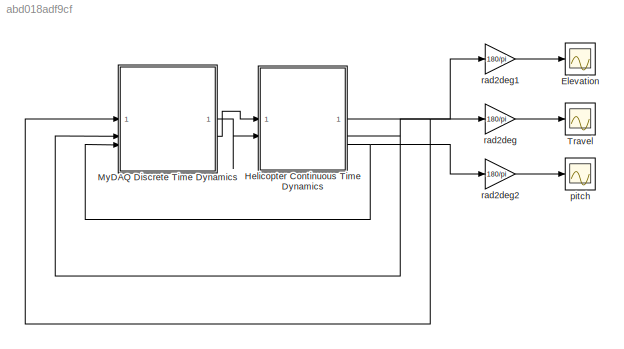
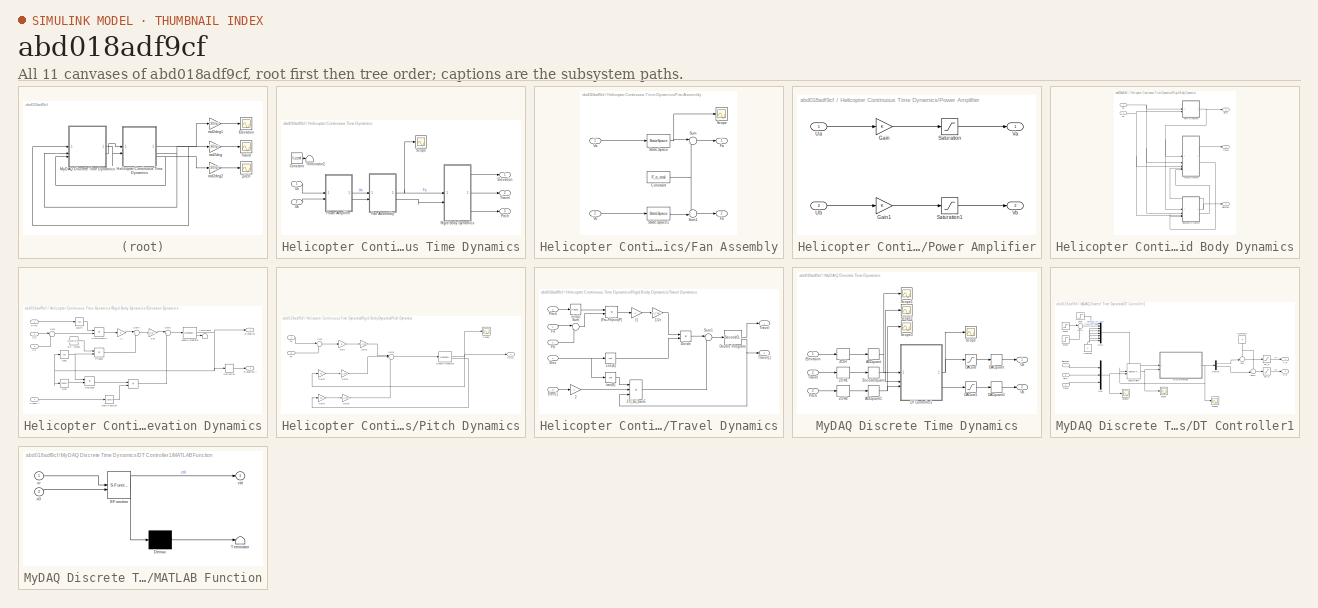
[diagram: thumbnail index - all 11 canvases of the model, root first then tree order]
MODEL slx_abd018adf9cf
KIND model
CONFIG AbsTol = auto
CONFIG EnableMultiTasking = on
CONFIG FixedStep = Ts
CONFIG MaxStep = auto
CONFIG MinStep = auto
CONFIG RelTol = 1e-5
CONFIG SampleTimeConstraint = Unconstrained
CONFIG SolverName = FixedStepAuto
CONFIG StartTime = 0.00
CONFIG StopTime = 10
BLOCK [Scope] Elevation
  ActiveDisplayYMaximum = 30
  ActiveDisplayYMinimum = -50
  DataLogging = on
  DataLoggingDecimateData = on
  DataLoggingDecimation = 1
  DataLoggingSaveFormat = Structure With Time
  DataLoggingVariableName = elev
  Floating = off
  GraphicalSettings = {"GraphicalSettings":{"LegacySettings":true,"Style":{"AxesScalingProperties":{"ScaleAxesLimitsAtStop":false},"Style":{"AxesColor":"[0 0 0]","ChannelNames":[""],"ColorOrder":"[1 0.909803921568627 0.392156862745098;0.149019607843137 0.549019607843137 0.866666666666667;0.96078431372549 0.466666666666667 0.16078431372549;0.286274509803922 0.858823529411765 0.250980392156863;0.752941176470588 0.3607843...<+488ch>  <repeated x3 — deduplicated; at blocks: Elevation, Travel, pitch>
  MultipleDisplayCache = [{"MaxYLimMag":10,"MaxYLimReal":30,"MinYLimMag":0,"MinYLimReal":-50,"PlotAsMagnitudePhase":false,"ShowGrid":true,"ShowLegend":false,"Title":"%<SignalLabel>","YLabel":""}]
  NumInputPorts = 1
  ScopeFrameLocation = window
  TimeSpan = 60
  WasSavedAsWebScope = on
  WindowPosition = [1.000000,49.000000,1920.000000,955.000000,]
BLOCK [SubSystem] Helicopter Continuous Time Dynamics
BLOCK [Constant] Helicopter Continuous Time Dynamics/Constant
  Value = U_e_real
BLOCK [Outport] Helicopter Continuous Time Dynamics/Elevation
  NameLocation = top
BLOCK [SubSystem] Helicopter Continuous Time Dynamics/Fan Assembly
BLOCK [Constant] Helicopter Continuous Time Dynamics/Fan Assembly/Constant
  Value = F_e_real
BLOCK [Outport] Helicopter Continuous Time Dynamics/Fan Assembly/Fa
BLOCK [Outport] Helicopter Continuous Time Dynamics/Fan Assembly/Fb
  Port = 2
BLOCK [Scope] Helicopter Continuous Time Dynamics/Fan Assembly/Scope
  ActiveDisplayYMaximum = 1
  ActiveDisplayYMinimum = -1
  Floating = off
  GraphicalSettings = {"Style":{"BackgroundColor":[0.12941176470588237,0.12941176470588237,0.12941176470588237],"AxesColor":[0.07058823529411765,0.07058823529411765,0.07058823529411765],"LabelsColor":[0.8509803921568627,0.8509803921568627,0.8509803921568627],"PreserveColors":false,"Visible":[true],"LineStyle":["-"],"LineWidth":[1.5],"BarWidth":[0.9],"LineColor":["auto"],"LineFaceAlpha":[1],"LineEdgeAlpha":[1],"Marker":...<+1904ch>
  MultipleDisplayCache = [{"MaxYLimMag":1,"MaxYLimReal":1,"MinYLimMag":0,"MinYLimReal":-1,"PlotAsMagnitudePhase":false,"ShowGrid":true,"ShowLegend":false,"Title":"%<SignalLabel>","YLabel":""}]
  NumInputPorts = 1
  ScopeFrameLocation = window
  WasSavedAsWebScope = on
  WindowPosition = [404.000000,247.000000,1029.000000,659.000000,]
BLOCK [StateSpace] Helicopter Continuous Time Dynamics/Fan Assembly/State-Space
  A = sys_fan.A
  B = sys_fan.B
  C = sys_fan.C
  D = sys_fan.D
  InitialCondition = 0
BLOCK [StateSpace] Helicopter Continuous Time Dynamics/Fan Assembly/State-Space1
  A = sys_fan.A
  B = sys_fan.B
  C = sys_fan.C
  D = sys_fan.D
  InitialCondition = 0
BLOCK [Sum] Helicopter Continuous Time Dynamics/Fan Assembly/Sum
  Inputs = |++
BLOCK [Sum] Helicopter Continuous Time Dynamics/Fan Assembly/Sum1
  Inputs = ++|
BLOCK [Inport] Helicopter Continuous Time Dynamics/Fan Assembly/Va
BLOCK [Inport] Helicopter Continuous Time Dynamics/Fan Assembly/Vb
  Port = 2
BLOCK [Outport] Helicopter Continuous Time Dynamics/Pitch
  Port = 3
BLOCK [SubSystem] Helicopter Continuous Time Dynamics/Power Amplifier
BLOCK [Gain] Helicopter Continuous Time Dynamics/Power Amplifier/Gain
BLOCK [Gain] Helicopter Continuous Time Dynamics/Power Amplifier/Gain1
BLOCK [Saturate] Helicopter Continuous Time Dynamics/Power Amplifier/Saturation
  LowerLimit = -amp_sat_u
  UpperLimit = amp_sat_u
BLOCK [Saturate] Helicopter Continuous Time Dynamics/Power Amplifier/Saturation1
  LowerLimit = -amp_sat_u
  UpperLimit = amp_sat_u
BLOCK [Inport] Helicopter Continuous Time Dynamics/Power Amplifier/Ua
BLOCK [Inport] Helicopter Continuous Time Dynamics/Power Amplifier/Ub
  Port = 2
BLOCK [Outport] Helicopter Continuous Time Dynamics/Power Amplifier/Va
BLOCK [Outport] Helicopter Continuous Time Dynamics/Power Amplifier/Vb
  Port = 2
BLOCK [SubSystem] Helicopter Continuous Time Dynamics/Rigid Body Dynamics
BLOCK [Outport] Helicopter Continuous Time Dynamics/Rigid Body Dynamics/Elevation
  NameLocation = top
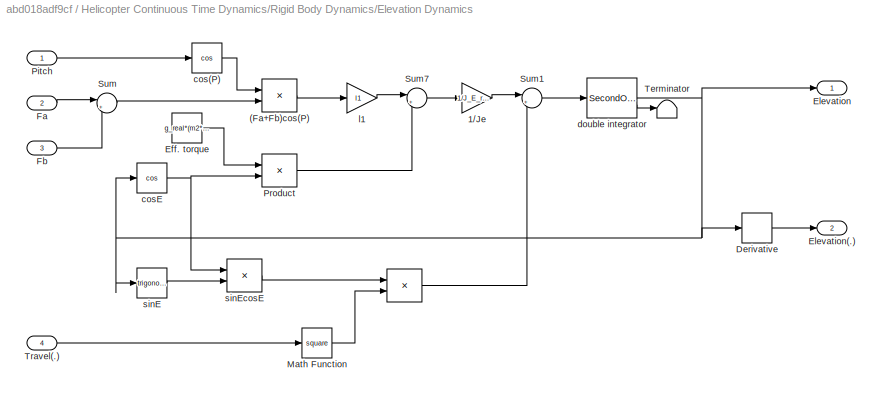
BLOCK [SubSystem] Helicopter Continuous Time Dynamics/Rigid Body Dynamics/Elevation Dynamics
BLOCK [Product] Helicopter Continuous Time Dynamics/Rigid Body Dynamics/Elevation Dynamics/ 
  InputSameDT = on
  OutDataTypeStr = Inherit: Same as first input
  RndMeth = Zero
  SaturateOnIntegerOverflow = on
BLOCK [Product] Helicopter Continuous Time Dynamics/Rigid Body Dynamics/Elevation Dynamics/(Fa+Fb)cos(P)
  InputSameDT = on
  OutDataTypeStr = Inherit: Same as first input
  RndMeth = Zero
  SaturateOnIntegerOverflow = on
BLOCK [Gain] Helicopter Continuous Time Dynamics/Rigid Body Dynamics/Elevation Dynamics/1//Je
  Gain = 1/J_E_real
  OutDataTypeStr = Inherit: Same as input
  ParamDataTypeStr = Inherit: Same as input
  SaturateOnIntegerOverflow = on
BLOCK [Derivative] Helicopter Continuous Time Dynamics/Rigid Body Dynamics/Elevation Dynamics/Derivative
BLOCK [Constant] Helicopter Continuous Time Dynamics/Rigid Body Dynamics/Elevation Dynamics/Eff. torque
  Value = g_real*(m2*l3-2*m1*l1)
BLOCK [Outport] Helicopter Continuous Time Dynamics/Rigid Body Dynamics/Elevation Dynamics/Elevation
BLOCK [Outport] Helicopter Continuous Time Dynamics/Rigid Body Dynamics/Elevation Dynamics/Elevation(.)
  Port = 2
BLOCK [Inport] Helicopter Continuous Time Dynamics/Rigid Body Dynamics/Elevation Dynamics/Fa
  Port = 2
BLOCK [Inport] Helicopter Continuous Time Dynamics/Rigid Body Dynamics/Elevation Dynamics/Fb
  Port = 3
BLOCK [Math] Helicopter Continuous Time Dynamics/Rigid Body Dynamics/Elevation Dynamics/Math Function
  Operator = square
  SignedPower = on
BLOCK [Inport] Helicopter Continuous Time Dynamics/Rigid Body Dynamics/Elevation Dynamics/Pitch
BLOCK [Product] Helicopter Continuous Time Dynamics/Rigid Body Dynamics/Elevation Dynamics/Product
  InputSameDT = on
  OutDataTypeStr = Inherit: Same as first input
  RndMeth = Zero
  SaturateOnIntegerOverflow = on
BLOCK [Sum] Helicopter Continuous Time Dynamics/Rigid Body Dynamics/Elevation Dynamics/Sum
  InputSameDT = on
  Inputs = |++
  OutDataTypeStr = Inherit: Same as first input
  SaturateOnIntegerOverflow = on
BLOCK [Sum] Helicopter Continuous Time Dynamics/Rigid Body Dynamics/Elevation Dynamics/Sum1
  InputSameDT = on
  Inputs = |+-
  OutDataTypeStr = Inherit: Same as first input
  SaturateOnIntegerOverflow = on
BLOCK [Sum] Helicopter Continuous Time Dynamics/Rigid Body Dynamics/Elevation Dynamics/Sum7
  InputSameDT = on
  Inputs = |++
  OutDataTypeStr = Inherit: Same as first input
  SaturateOnIntegerOverflow = on
BLOCK [Terminator] Helicopter Continuous Time Dynamics/Rigid Body Dynamics/Elevation Dynamics/Terminator
BLOCK [Inport] Helicopter Continuous Time Dynamics/Rigid Body Dynamics/Elevation Dynamics/Travel(.)
  Port = 4
BLOCK [Trigonometry] Helicopter Continuous Time Dynamics/Rigid Body Dynamics/Elevation Dynamics/cos(P)
  Operator = cos
BLOCK [Trigonometry] Helicopter Continuous Time Dynamics/Rigid Body Dynamics/Elevation Dynamics/cosE
  Operator = cos
BLOCK [SecondOrderIntegrator] Helicopter Continuous Time Dynamics/Rigid Body Dynamics/Elevation Dynamics/double integrator
  ICX = x0(1)
  LimitDXDT = on
  LimitX = on
  LowerLimitDXDT = -2*pi
  LowerLimitX = e_lim_l
  UpperLimitDXDT = 2*pi
  UpperLimitX = e_lim_u
BLOCK [Gain] Helicopter Continuous Time Dynamics/Rigid Body Dynamics/Elevation Dynamics/l1
  Gain = l1
  OutDataTypeStr = Inherit: Same as input
  ParamDataTypeStr = Inherit: Same as input
  SaturateOnIntegerOverflow = on
BLOCK [Trigonometry] Helicopter Continuous Time Dynamics/Rigid Body Dynamics/Elevation Dynamics/sinE
BLOCK [Product] Helicopter Continuous Time Dynamics/Rigid Body Dynamics/Elevation Dynamics/sinEcosE
  InputSameDT = on
  OutDataTypeStr = Inherit: Same as first input
  RndMeth = Zero
  SaturateOnIntegerOverflow = on
BLOCK [Inport] Helicopter Continuous Time Dynamics/Rigid Body Dynamics/Fa
BLOCK [Inport] Helicopter Continuous Time Dynamics/Rigid Body Dynamics/Fb
  Port = 2
BLOCK [Outport] Helicopter Continuous Time Dynamics/Rigid Body Dynamics/Pitch
  Port = 3
BLOCK [SubSystem] Helicopter Continuous Time Dynamics/Rigid Body Dynamics/Pitch Dynamics
BLOCK [SecondOrderIntegrator] Helicopter Continuous Time Dynamics/Rigid Body Dynamics/Pitch Dynamics/Double Integrator
  ICX = x0(2)
  LimitX = on
  LowerLimitX = p_lim_l
  UpperLimitX = p_lim_u
BLOCK [Inport] Helicopter Continuous Time Dynamics/Rigid Body Dynamics/Pitch Dynamics/Fa
BLOCK [Inport] Helicopter Continuous Time Dynamics/Rigid Body Dynamics/Pitch Dynamics/Fb
  Port = 2
BLOCK [Gain] Helicopter Continuous Time Dynamics/Rigid Body Dynamics/Pitch Dynamics/Gain
  Gain = l2
BLOCK [Gain] Helicopter Continuous Time Dynamics/Rigid Body Dynamics/Pitch Dynamics/Gain1
  Gain = 1/J_Psi_real
BLOCK [Gain] Helicopter Continuous Time Dynamics/Rigid Body Dynamics/Pitch Dynamics/Gain2
  Gain = ks
BLOCK [Gain] Helicopter Continuous Time Dynamics/Rigid Body Dynamics/Pitch Dynamics/Gain3
  Gain = 1/J_Psi_real
BLOCK [Gain] Helicopter Continuous Time Dynamics/Rigid Body Dynamics/Pitch Dynamics/Gain4
  Gain = kd
BLOCK [Gain] Helicopter Continuous Time Dynamics/Rigid Body Dynamics/Pitch Dynamics/Gain5
  Gain = 1/J_Psi_real
BLOCK [Outport] Helicopter Continuous Time Dynamics/Rigid Body Dynamics/Pitch Dynamics/Pitch
BLOCK [Scope] Helicopter Continuous Time Dynamics/Rigid Body Dynamics/Pitch Dynamics/Scope
  ActiveDisplayYMaximum = 1
  ActiveDisplayYMinimum = -1
  DataLoggingVariableName = ScopeData2
  Floating = off
  GraphicalSettings = {"Style":{"BackgroundColor":[0.12941176470588237,0.12941176470588237,0.12941176470588237],"AxesColor":[0.07058823529411765,0.07058823529411765,0.07058823529411765],"LabelsColor":[0.8509803921568627,0.8509803921568627,0.8509803921568627],"PreserveColors":false,"Visible":[true],"LineStyle":["-"],"LineWidth":[1.5],"BarWidth":[0.9],"LineColor":["auto"],"LineFaceAlpha":[1],"LineEdgeAlpha":[1],"Marker":...<+1922ch>
  MultipleDisplayCache = [{"MaxYLimMag":1,"MaxYLimReal":1,"MinYLimMag":0,"MinYLimReal":-1,"PlotAsMagnitudePhase":false,"ShowGrid":true,"ShowLegend":false,"Title":"%<SignalLabel>","YLabel":""}]
  NumInputPorts = 1
  ScopeFrameLocation = window
  WasSavedAsWebScope = on
  WindowPosition = [680.000000,330.000000,560.000000,420.000000,]
BLOCK [Sum] Helicopter Continuous Time Dynamics/Rigid Body Dynamics/Pitch Dynamics/Sum
  Inputs = +-
BLOCK [Sum] Helicopter Continuous Time Dynamics/Rigid Body Dynamics/Pitch Dynamics/Sum1
  Inputs = |---
BLOCK [Outport] Helicopter Continuous Time Dynamics/Rigid Body Dynamics/Travel
  Port = 2
BLOCK [SubSystem] Helicopter Continuous Time Dynamics/Rigid Body Dynamics/Travel Dynamics
BLOCK [Product] Helicopter Continuous Time Dynamics/Rigid Body Dynamics/Travel Dynamics/(Fa+Fb)sin(P)
  InputSameDT = on
  OutDataTypeStr = Inherit: Same as first input
  RndMeth = Zero
  SaturateOnIntegerOverflow = on
BLOCK [Gain] Helicopter Continuous Time Dynamics/Rigid Body Dynamics/Travel Dynamics/1//Jt
  Gain = 1/J_Theta_real
  OutDataTypeStr = Inherit: Same as input
  ParamDataTypeStr = Inherit: Same as input
  SaturateOnIntegerOverflow = on
BLOCK [Gain] Helicopter Continuous Time Dynamics/Rigid Body Dynamics/Travel Dynamics/2
  Gain = 2
  OutDataTypeStr = Inherit: Same as input
  ParamDataTypeStr = Inherit: Same as input
  SaturateOnIntegerOverflow = on
BLOCK [Product] Helicopter Continuous Time Dynamics/Rigid Body Dynamics/Travel Dynamics/2T(.)E(.)tanE
  InputSameDT = on
  Inputs = 3
  OutDataTypeStr = Inherit: Same as first input
  RndMeth = Zero
  SaturateOnIntegerOverflow = on
BLOCK [Product] Helicopter Continuous Time Dynamics/Rigid Body Dynamics/Travel Dynamics/Divide
  Inputs = */
BLOCK [SecondOrderIntegrator] Helicopter Continuous Time Dynamics/Rigid Body Dynamics/Travel Dynamics/Double Integrator
  ICX = x0(3)
  LimitDXDT = on
  LowerLimitDXDT = -2
  LowerLimitX = 0
  UpperLimitDXDT = 2
  UpperLimitX = 1
BLOCK [Inport] Helicopter Continuous Time Dynamics/Rigid Body Dynamics/Travel Dynamics/Elev
  Port = 4
BLOCK [Inport] Helicopter Continuous Time Dynamics/Rigid Body Dynamics/Travel Dynamics/Elev(.)
  Port = 5
BLOCK [Inport] Helicopter Continuous Time Dynamics/Rigid Body Dynamics/Travel Dynamics/Fa
  Port = 2
BLOCK [Inport] Helicopter Continuous Time Dynamics/Rigid Body Dynamics/Travel Dynamics/Fb
  Port = 3
BLOCK [Inport] Helicopter Continuous Time Dynamics/Rigid Body Dynamics/Travel Dynamics/Pitch
BLOCK [Sum] Helicopter Continuous Time Dynamics/Rigid Body Dynamics/Travel Dynamics/Sum
  InputSameDT = on
  Inputs = |++
  OutDataTypeStr = Inherit: Same as first input
  SaturateOnIntegerOverflow = on
BLOCK [Sum] Helicopter Continuous Time Dynamics/Rigid Body Dynamics/Travel Dynamics/Sum1
  InputSameDT = on
  Inputs = |-+
  OutDataTypeStr = Inherit: Same as first input
  SaturateOnIntegerOverflow = on
BLOCK [Outport] Helicopter Continuous Time Dynamics/Rigid Body Dynamics/Travel Dynamics/Travel
BLOCK [Outport] Helicopter Continuous Time Dynamics/Rigid Body Dynamics/Travel Dynamics/Travel(.)
  Port = 2
BLOCK [Trigonometry] Helicopter Continuous Time Dynamics/Rigid Body Dynamics/Travel Dynamics/cos(E)
  Operator = cos
BLOCK [Gain] Helicopter Continuous Time Dynamics/Rigid Body Dynamics/Travel Dynamics/l1
  Gain = l1
  OutDataTypeStr = Inherit: Same as input
  ParamDataTypeStr = Inherit: Same as input
  SaturateOnIntegerOverflow = on
BLOCK [Trigonometry] Helicopter Continuous Time Dynamics/Rigid Body Dynamics/Travel Dynamics/sin(p)
BLOCK [Trigonometry] Helicopter Continuous Time Dynamics/Rigid Body Dynamics/Travel Dynamics/tan(E)
  Operator = tan
BLOCK [Scope] Helicopter Continuous Time Dynamics/Scope
  ActiveDisplayYMaximum = 1.6958099755429914
  ActiveDisplayYMinimum = -1.3910046116156587
  DataLoggingVariableName = ScopeData5
  Floating = off
  GraphicalSettings = {"Style":{"BackgroundColor":[0.12941176470588237,0.12941176470588237,0.12941176470588237],"AxesColor":[0.07058823529411765,0.07058823529411765,0.07058823529411765],"LabelsColor":[0.8509803921568627,0.8509803921568627,0.8509803921568627],"PreserveColors":false,"Visible":[true],"LineStyle":["-"],"LineWidth":[1.5],"BarWidth":[0.9],"LineColor":["auto"],"LineFaceAlpha":[1],"LineEdgeAlpha":[1],"Marker":...<+2242ch>
  MultipleDisplayCache = [{"MaxYLimMag":1.6958099755429914,"MaxYLimReal":1.6958099755429914,"MinYLimMag":0,"MinYLimReal":-1.3910046116156587,"PlotAsMagnitudePhase":false,"ShowGrid":true,"ShowLegend":true,"Title":"%<SignalLabel>","YLabel":""}]
  NumInputPorts = 1
  ScopeFrameLocation = window
  ShowLegend = on
  Visible = on
  WasSavedAsWebScope = on
  WindowPosition = [5.000000,351.000000,1918.000000,484.000000,]
BLOCK [Terminator] Helicopter Continuous Time Dynamics/Terminator2
BLOCK [Outport] Helicopter Continuous Time Dynamics/Travel
  Port = 2
BLOCK [Inport] Helicopter Continuous Time Dynamics/Ua
BLOCK [Inport] Helicopter Continuous Time Dynamics/Ub
  Port = 2
BLOCK [SubSystem] MyDAQ Discrete Time Dynamics
BLOCK [Quantizer] MyDAQ Discrete Time Dynamics/ADCquant
  QuantizationInterval = ADC_Vres
  SampleTime = Ts
BLOCK [Quantizer] MyDAQ Discrete Time Dynamics/ADCquant1
  QuantizationInterval = ADC_Vres
  SampleTime = Ts
BLOCK [Quantizer] MyDAQ Discrete Time Dynamics/DACquant
  QuantizationInterval = DAC_Vres
  SampleTime = Ts
BLOCK [Quantizer] MyDAQ Discrete Time Dynamics/DACquant1
  QuantizationInterval = DAC_Vres
  SampleTime = Ts
BLOCK [Saturate] MyDAQ Discrete Time Dynamics/DACsat
  LowerLimit = -DAC_lim_u
  SampleTime = Ts
  UpperLimit = DAC_lim_u
BLOCK [Saturate] MyDAQ Discrete Time Dynamics/DACsat1
  LowerLimit = -DAC_lim_u
  SampleTime = Ts
  UpperLimit = DAC_lim_u
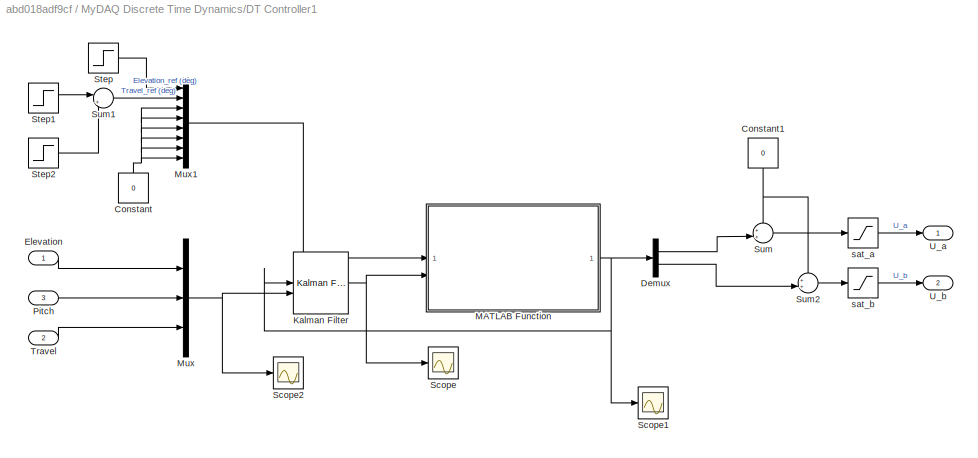
BLOCK [SubSystem] MyDAQ Discrete Time Dynamics/DT Controller1
BLOCK [Constant] MyDAQ Discrete Time Dynamics/DT Controller1/Constant
  NameLocation = right
  Value = 0
BLOCK [Constant] MyDAQ Discrete Time Dynamics/DT Controller1/Constant1
  NameLocation = left
  Value = 0
BLOCK [Demux] MyDAQ Discrete Time Dynamics/DT Controller1/Demux
  Outputs = 2
BLOCK [Inport] MyDAQ Discrete Time Dynamics/DT Controller1/Elevation
BLOCK [Reference] MyDAQ Discrete Time Dynamics/DT Controller1/Kalman Filter  REF=ctrlSharedLib/Kalman Filter
  LibrarySourceBlock = cstblocks/State Estimation/Kalman Filter
  SourceBlock = ctrlSharedLib/Kalman Filter
  SourceType = ctrlKalmanFilter
BLOCK [SubSystem] MyDAQ Discrete Time Dynamics/DT Controller1/MATLAB Function
  ErrorFcn = Stateflow.Translate.translate
  PermitHierarchicalResolution = ExplicitOnly
  SFBlockType = MATLAB Function
  TreatAsAtomicUnit = on
BLOCK [Demux] MyDAQ Discrete Time Dynamics/DT Controller1/MATLAB Function/ Demux 
  Outputs = 1
BLOCK [S-Function] MyDAQ Discrete Time Dynamics/DT Controller1/MATLAB Function/ SFunction 
  EnableBusSupport = off
  FunctionName = sf_sfun
  Parameters = N,Q,QN,l,nu,nx,q,u
  PortCounts = [2 2]
  SFcnIsStateOwnerBlock = off
  SFunctionDeploymentMode = off
  Tag = Stateflow S-Function 2
BLOCK [Terminator] MyDAQ Discrete Time Dynamics/DT Controller1/MATLAB Function/ Terminator 
BLOCK [Outport] MyDAQ Discrete Time Dynamics/DT Controller1/MATLAB Function/ctrl
BLOCK [Inport] MyDAQ Discrete Time Dynamics/DT Controller1/MATLAB Function/x0
  Port = 2
BLOCK [Inport] MyDAQ Discrete Time Dynamics/DT Controller1/MATLAB Function/xr
BLOCK [Mux] MyDAQ Discrete Time Dynamics/DT Controller1/Mux
  DisplayOption = bar
  Inputs = 3
BLOCK [Mux] MyDAQ Discrete Time Dynamics/DT Controller1/Mux1
  DisplayOption = bar
  Inputs = 8
BLOCK [Inport] MyDAQ Discrete Time Dynamics/DT Controller1/Pitch
  Port = 3
BLOCK [Scope] MyDAQ Discrete Time Dynamics/DT Controller1/Scope
  ActiveDisplayYMaximum = 1.6155430663981798
  ActiveDisplayYMinimum = -2.4396283803217269
  DataLoggingVariableName = ScopeData3
  Floating = off
  GraphicalSettings = {"Style":{"BackgroundColor":[0.12941176470588237,0.12941176470588237,0.12941176470588237],"AxesColor":[0.07058823529411765,0.07058823529411765,0.07058823529411765],"LabelsColor":[0.8509803921568627,0.8509803921568627,0.8509803921568627],"PreserveColors":false,"Visible":[true,true,true,false,false,false,false,false],"LineStyle":["-","-","-","-","-","-","-","-"],"LineWidth":[1.5,1.5,1.5,1.5,1.5,1.5,...<+2896ch>
  MultipleDisplayCache = [{"MaxYLimMag":0.80765936025648843,"MaxYLimReal":1.6155430663981798,"MinYLimMag":0,"MinYLimReal":-2.4396283803217269,"PlotAsMagnitudePhase":false,"ShowGrid":true,"ShowLegend":true,"Title":"%<SignalLabel>","YLabel":""}]
  NumInputPorts = 1
  ScopeFrameLocation = window
  ShowLegend = on
  Visible = on
  WasSavedAsWebScope = on
  WindowPosition = [-1918.000000,566.000000,1918.000000,484.000000,]
BLOCK [Scope] MyDAQ Discrete Time Dynamics/DT Controller1/Scope1
  ActiveDisplayYMaximum = 1
  ActiveDisplayYMinimum = -1
  DataLoggingVariableName = ScopeData4
  Floating = off
  GraphicalSettings = {"Style":{"BackgroundColor":[0.12941176470588237,0.12941176470588237,0.12941176470588237],"AxesColor":[0.07058823529411765,0.07058823529411765,0.07058823529411765],"LabelsColor":[0.8509803921568627,0.8509803921568627,0.8509803921568627],"PreserveColors":false,"Visible":[true,true],"LineStyle":["-","-"],"LineWidth":[1.5,1.5],"BarWidth":[0.9,0.9],"LineColor":["auto","auto"],"LineFaceAlpha":[1,1],"Li...<+2053ch>
  MultipleDisplayCache = [{"MaxYLimMag":1,"MaxYLimReal":1,"MinYLimMag":0,"MinYLimReal":-1,"PlotAsMagnitudePhase":false,"ShowGrid":true,"ShowLegend":false,"Title":"%<SignalLabel>","YLabel":""}]
  NumInputPorts = 1
  ScopeFrameLocation = window
  WasSavedAsWebScope = on
  WindowPosition = [423.000000,383.000000,560.000000,420.000000,]
BLOCK [Scope] MyDAQ Discrete Time Dynamics/DT Controller1/Scope2
  ActiveDisplayYMaximum = 1.1142569878492721
  ActiveDisplayYMinimum = -2.0543672469917391
  DataLoggingVariableName = ScopeData3
  Floating = off
  GraphicalSettings = {"Style":{"BackgroundColor":[0.12941176470588237,0.12941176470588237,0.12941176470588237],"AxesColor":[0.07058823529411765,0.07058823529411765,0.07058823529411765],"LabelsColor":[0.8509803921568627,0.8509803921568627,0.8509803921568627],"PreserveColors":false,"Visible":[true,true,true],"LineStyle":["-","-","-"],"LineWidth":[1.5,1.5,1.5],"BarWidth":[0.9,0.9,0.9],"LineColor":["auto","auto","auto"],"...<+2224ch>
  MultipleDisplayCache = [{"MaxYLimMag":1.3737432535026337,"MaxYLimReal":1.1142569878492721,"MinYLimMag":0,"MinYLimReal":-2.0543672469917391,"PlotAsMagnitudePhase":false,"ShowGrid":true,"ShowLegend":true,"Title":"%<SignalLabel>","YLabel":""}]
  NumInputPorts = 1
  ScopeFrameLocation = window
  ShowLegend = on
  Visible = on
  WasSavedAsWebScope = on
  WindowPosition = [-1917.000000,50.000000,1920.000000,506.000000,]
BLOCK [Step] MyDAQ Discrete Time Dynamics/DT Controller1/Step
  After = 0
  Before = x0(1)
  SampleTime = Ts
  Time = 0
BLOCK [Step] MyDAQ Discrete Time Dynamics/DT Controller1/Step1
  After = 0
  SampleTime = Ts
  Time = x0(2)
BLOCK [Step] MyDAQ Discrete Time Dynamics/DT Controller1/Step2
  After = 0
  Before = x0(3)
  SampleTime = Ts
  Time = 0
BLOCK [Sum] MyDAQ Discrete Time Dynamics/DT Controller1/Sum
  Inputs = ++|
BLOCK [Sum] MyDAQ Discrete Time Dynamics/DT Controller1/Sum1
  Inputs = |+-
BLOCK [Sum] MyDAQ Discrete Time Dynamics/DT Controller1/Sum2
  Inputs = ++|
BLOCK [Inport] MyDAQ Discrete Time Dynamics/DT Controller1/Travel
  Port = 2
BLOCK [Outport] MyDAQ Discrete Time Dynamics/DT Controller1/U_a
BLOCK [Outport] MyDAQ Discrete Time Dynamics/DT Controller1/U_b
  Port = 2
BLOCK [Saturate] MyDAQ Discrete Time Dynamics/DT Controller1/sat_a
  LowerLimit = -DAC_lim_u
  UpperLimit = DAC_lim_u
BLOCK [Saturate] MyDAQ Discrete Time Dynamics/DT Controller1/sat_b
  LowerLimit = -DAC_lim_u
  UpperLimit = DAC_lim_u
BLOCK [Inport] MyDAQ Discrete Time Dynamics/Elevation
BLOCK [Quantizer] MyDAQ Discrete Time Dynamics/Encoderquant
  QuantizationInterval = Encoder_res
  SampleTime = Ts
BLOCK [Inport] MyDAQ Discrete Time Dynamics/Pitch
  Port = 3
BLOCK [Scope] MyDAQ Discrete Time Dynamics/Scope
  ActiveDisplayYMaximum = 1
  ActiveDisplayYMinimum = -1
  DataLoggingVariableName = ScopeData1
  Floating = off
  GraphicalSettings = {"Style":{"BackgroundColor":[0.12941176470588237,0.12941176470588237,0.12941176470588237],"AxesColor":[0.07058823529411765,0.07058823529411765,0.07058823529411765],"LabelsColor":[0.8509803921568627,0.8509803921568627,0.8509803921568627],"PreserveColors":false,"Visible":[true],"LineStyle":["-"],"LineWidth":[1.5],"BarWidth":[0.9],"LineColor":["auto"],"LineFaceAlpha":[1],"LineEdgeAlpha":[1],"Marker":...<+1920ch>
  MultipleDisplayCache = [{"MaxYLimMag":1,"MaxYLimReal":1,"MinYLimMag":0,"MinYLimReal":-1,"PlotAsMagnitudePhase":false,"ShowGrid":true,"ShowLegend":false,"Title":"%<SignalLabel>","YLabel":""}]
  NumInputPorts = 1
  ScopeFrameLocation = window
  WasSavedAsWebScope = on
  WindowPosition = [812.000000,344.000000,560.000000,420.000000,]
BLOCK [Scope] MyDAQ Discrete Time Dynamics/Scope1
  ActiveDisplayYMaximum = 0.78714
  ActiveDisplayYMinimum = -0.1017
  DataLoggingVariableName = ScopeData2
  Floating = off
  GraphicalSettings = {"GraphicalSettings":{"LegacySettings":true,"Style":{"Style":{"AxesColor":"[0 0 0]","ChannelNames":[""],"ColorOrder":"[1 0.909803921568627 0.392156862745098;0.149019607843137 0.549019607843137 0.866666666666667;0.96078431372549 0.466666666666667 0.16078431372549;0.286274509803922 0.858823529411765 0.250980392156863;0.752941176470588 0.36078431372549 0.984313725490196;0.423529411764706 0.9568627450...<+432ch>  <repeated x3 — deduplicated; at blocks: Scope1, Scope2, Scope3>
  MultipleDisplayCache = [{"MaxYLimMag":0.78714,"MaxYLimReal":0.78714,"MinYLimMag":0,"MinYLimReal":-0.1017,"PlotAsMagnitudePhase":false,"ShowGrid":true,"ShowLegend":false,"Title":"%<SignalLabel>","YLabel":""}]
  NumInputPorts = 1
  WasSavedAsWebScope = on
  WindowPosition = [105 396 560 420]
BLOCK [Scope] MyDAQ Discrete Time Dynamics/Scope2
  ActiveDisplayYMaximum = 1
  ActiveDisplayYMinimum = -1
  DataLoggingVariableName = ScopeData1
  Floating = off
  MultipleDisplayCache = [{"MaxYLimMag":1,"MaxYLimReal":1,"MinYLimMag":0,"MinYLimReal":-1,"PlotAsMagnitudePhase":false,"ShowGrid":true,"ShowLegend":false,"Title":"%<SignalLabel>","YLabel":""}]
  NumInputPorts = 1
  WasSavedAsWebScope = on
  WindowPosition = [105 396 560 420]
BLOCK [Scope] MyDAQ Discrete Time Dynamics/Scope3
  ActiveDisplayYMaximum = 1
  ActiveDisplayYMinimum = -1
  DataLoggingVariableName = ScopeData2
  Floating = off
  MultipleDisplayCache = [{"MaxYLimMag":1,"MaxYLimReal":1,"MinYLimMag":0,"MinYLimReal":-1,"PlotAsMagnitudePhase":false,"ShowGrid":true,"ShowLegend":false,"Title":"%<SignalLabel>","YLabel":""}]
  NumInputPorts = 1
  WasSavedAsWebScope = on
  WindowPosition = [105 396 560 420]
BLOCK [Inport] MyDAQ Discrete Time Dynamics/Travel
  Port = 2
BLOCK [Outport] MyDAQ Discrete Time Dynamics/Ua
BLOCK [Outport] MyDAQ Discrete Time Dynamics/Ub
  Port = 2
BLOCK [ZeroOrderHold] MyDAQ Discrete Time Dynamics/ZOH
  SampleTime = Ts
BLOCK [ZeroOrderHold] MyDAQ Discrete Time Dynamics/ZOH1
  SampleTime = Ts
BLOCK [ZeroOrderHold] MyDAQ Discrete Time Dynamics/ZOH2
  SampleTime = Ts
BLOCK [Scope] Travel
  ActiveDisplayYMaximum = 300
  ActiveDisplayYMinimum = -150
  DataLogging = on
  DataLoggingDecimateData = on
  DataLoggingDecimation = 1
  DataLoggingSaveFormat = Structure With Time
  DataLoggingVariableName = trav
  Floating = off
  MultipleDisplayCache = [{"MaxYLimMag":10,"MaxYLimReal":300,"MinYLimMag":0,"MinYLimReal":-150,"PlotAsMagnitudePhase":false,"ShowGrid":true,"ShowLegend":false,"Title":"%<SignalLabel>","YLabel":""}]
  NumInputPorts = 1
  TimeSpan = 60
  WasSavedAsWebScope = on
  WindowPosition = [413 349 330 258]
BLOCK [Scope] pitch
  ActiveDisplayYMaximum = 20
  ActiveDisplayYMinimum = -25
  DataLogging = on
  DataLoggingDecimateData = on
  DataLoggingDecimation = 1
  DataLoggingSaveFormat = Structure With Time
  DataLoggingVariableName = pitch
  Floating = off
  MultipleDisplayCache = [{"MaxYLimMag":10,"MaxYLimReal":20,"MinYLimMag":0,"MinYLimReal":-25,"PlotAsMagnitudePhase":false,"ShowGrid":true,"ShowLegend":false,"Title":"%<SignalLabel>","YLabel":""}]
  NumInputPorts = 1
  TimeSpan = 60
  WasSavedAsWebScope = on
  WindowPosition = [745 346 483 267]
BLOCK [Gain] rad2deg
  Gain = 180/pi
  OutDataTypeStr = Inherit: Same as input
  ParamDataTypeStr = Inherit: Same as input
  SaturateOnIntegerOverflow = on
BLOCK [Gain] rad2deg1
  Gain = 180/pi
  OutDataTypeStr = Inherit: Same as input
  ParamDataTypeStr = Inherit: Same as input
  SaturateOnIntegerOverflow = on
BLOCK [Gain] rad2deg2
  Gain = 180/pi
  OutDataTypeStr = Inherit: Same as input
  ParamDataTypeStr = Inherit: Same as input
  SaturateOnIntegerOverflow = on
LINE Helicopter Continuous Time Dynamics/Constant:1 -> Helicopter Continuous Time Dynamics/Terminator2:1
NET Helicopter Continuous Time Dynamics/Fan Assembly/Constant:1 -> Helicopter Continuous Time Dynamics/Fan Assembly/Sum1:1, Helicopter Continuous Time Dynamics/Fan Assembly/Sum:2
LINE Helicopter Continuous Time Dynamics/Fan Assembly/State-Space1:1 -> Helicopter Continuous Time Dynamics/Fan Assembly/Sum1:2
NET Helicopter Continuous Time Dynamics/Fan Assembly/State-Space:1 -> Helicopter Continuous Time Dynamics/Fan Assembly/Scope:1, Helicopter Continuous Time Dynamics/Fan Assembly/Sum:1
LINE Helicopter Continuous Time Dynamics/Fan Assembly/Sum1:1 -> Helicopter Continuous Time Dynamics/Fan Assembly/Fb:1
LINE Helicopter Continuous Time Dynamics/Fan Assembly/Sum:1 -> Helicopter Continuous Time Dynamics/Fan Assembly/Fa:1
LINE Helicopter Continuous Time Dynamics/Fan Assembly/Va:1 -> Helicopter Continuous Time Dynamics/Fan Assembly/State-Space:1
LINE Helicopter Continuous Time Dynamics/Fan Assembly/Vb:1 -> Helicopter Continuous Time Dynamics/Fan Assembly/State-Space1:1
NET Helicopter Continuous Time Dynamics/Fan Assembly:1 -> Helicopter Continuous Time Dynamics/Rigid Body Dynamics:1, Helicopter Continuous Time Dynamics/Scope:1
LINE Helicopter Continuous Time Dynamics/Fan Assembly:2 -> Helicopter Continuous Time Dynamics/Rigid Body Dynamics:2
LINE Helicopter Continuous Time Dynamics/Power Amplifier/Gain1:1 -> Helicopter Continuous Time Dynamics/Power Amplifier/Saturation1:1
LINE Helicopter Continuous Time Dynamics/Power Amplifier/Gain:1 -> Helicopter Continuous Time Dynamics/Power Amplifier/Saturation:1
LINE Helicopter Continuous Time Dynamics/Power Amplifier/Saturation1:1 -> Helicopter Continuous Time Dynamics/Power Amplifier/Vb:1
LINE Helicopter Continuous Time Dynamics/Power Amplifier/Saturation:1 -> Helicopter Continuous Time Dynamics/Power Amplifier/Va:1
LINE Helicopter Continuous Time Dynamics/Power Amplifier/Ua:1 -> Helicopter Continuous Time Dynamics/Power Amplifier/Gain:1
LINE Helicopter Continuous Time Dynamics/Power Amplifier/Ub:1 -> Helicopter Continuous Time Dynamics/Power Amplifier/Gain1:1
LINE Helicopter Continuous Time Dynamics/Power Amplifier:1 -> Helicopter Continuous Time Dynamics/Fan Assembly:1
LINE Helicopter Continuous Time Dynamics/Power Amplifier:2 -> Helicopter Continuous Time Dynamics/Fan Assembly:2
LINE Helicopter Continuous Time Dynamics/Rigid Body Dynamics/Elevation Dynamics/ :1 -> Helicopter Continuous Time Dynamics/Rigid Body Dynamics/Elevation Dynamics/Sum1:2
LINE Helicopter Continuous Time Dynamics/Rigid Body Dynamics/Elevation Dynamics/(Fa+Fb)cos(P):1 -> Helicopter Continuous Time Dynamics/Rigid Body Dynamics/Elevation Dynamics/l1:1
LINE Helicopter Continuous Time Dynamics/Rigid Body Dynamics/Elevation Dynamics/1//Je:1 -> Helicopter Continuous Time Dynamics/Rigid Body Dynamics/Elevation Dynamics/Sum1:1
LINE Helicopter Continuous Time Dynamics/Rigid Body Dynamics/Elevation Dynamics/Derivative:1 -> Helicopter Continuous Time Dynamics/Rigid Body Dynamics/Elevation Dynamics/Elevation(.):1
LINE Helicopter Continuous Time Dynamics/Rigid Body Dynamics/Elevation Dynamics/Eff. torque:1 -> Helicopter Continuous Time Dynamics/Rigid Body Dynamics/Elevation Dynamics/Product:1
LINE Helicopter Continuous Time Dynamics/Rigid Body Dynamics/Elevation Dynamics/Fa:1 -> Helicopter Continuous Time Dynamics/Rigid Body Dynamics/Elevation Dynamics/Sum:1
LINE Helicopter Continuous Time Dynamics/Rigid Body Dynamics/Elevation Dynamics/Fb:1 -> Helicopter Continuous Time Dynamics/Rigid Body Dynamics/Elevation Dynamics/Sum:2
LINE Helicopter Continuous Time Dynamics/Rigid Body Dynamics/Elevation Dynamics/Math Function:1 -> Helicopter Continuous Time Dynamics/Rigid Body Dynamics/Elevation Dynamics/ :2
LINE Helicopter Continuous Time Dynamics/Rigid Body Dynamics/Elevation Dynamics/Pitch:1 -> Helicopter Continuous Time Dynamics/Rigid Body Dynamics/Elevation Dynamics/cos(P):1
LINE Helicopter Continuous Time Dynamics/Rigid Body Dynamics/Elevation Dynamics/Product:1 -> Helicopter Continuous Time Dynamics/Rigid Body Dynamics/Elevation Dynamics/Sum7:2
LINE Helicopter Continuous Time Dynamics/Rigid Body Dynamics/Elevation Dynamics/Sum1:1 -> Helicopter Continuous Time Dynamics/Rigid Body Dynamics/Elevation Dynamics/double integrator:1
LINE Helicopter Continuous Time Dynamics/Rigid Body Dynamics/Elevation Dynamics/Sum7:1 -> Helicopter Continuous Time Dynamics/Rigid Body Dynamics/Elevation Dynamics/1//Je:1
LINE Helicopter Continuous Time Dynamics/Rigid Body Dynamics/Elevation Dynamics/Sum:1 -> Helicopter Continuous Time Dynamics/Rigid Body Dynamics/Elevation Dynamics/(Fa+Fb)cos(P):2
LINE Helicopter Continuous Time Dynamics/Rigid Body Dynamics/Elevation Dynamics/Travel(.):1 -> Helicopter Continuous Time Dynamics/Rigid Body Dynamics/Elevation Dynamics/Math Function:1
LINE Helicopter Continuous Time Dynamics/Rigid Body Dynamics/Elevation Dynamics/cos(P):1 -> Helicopter Continuous Time Dynamics/Rigid Body Dynamics/Elevation Dynamics/(Fa+Fb)cos(P):1
NET Helicopter Continuous Time Dynamics/Rigid Body Dynamics/Elevation Dynamics/cosE:1 -> Helicopter Continuous Time Dynamics/Rigid Body Dynamics/Elevation Dynamics/Product:2, Helicopter Continuous Time Dynamics/Rigid Body Dynamics/Elevation Dynamics/sinEcosE:1
NET Helicopter Continuous Time Dynamics/Rigid Body Dynamics/Elevation Dynamics/double integrator:1 -> Helicopter Continuous Time Dynamics/Rigid Body Dynamics/Elevation Dynamics/Derivative:1, Helicopter Continuous Time Dynamics/Rigid Body Dynamics/Elevation Dynamics/Elevation:1, Helicopter Continuous Time Dynamics/Rigid Body Dynamics/Elevation Dynamics/cosE:1, Helicopter Continuous Time Dynamics/Rigid Body Dynamics/Elevation Dynamics/sinE:1
LINE Helicopter Continuous Time Dynamics/Rigid Body Dynamics/Elevation Dynamics/double integrator:2 -> Helicopter Continuous Time Dynamics/Rigid Body Dynamics/Elevation Dynamics/Terminator:1
LINE Helicopter Continuous Time Dynamics/Rigid Body Dynamics/Elevation Dynamics/l1:1 -> Helicopter Continuous Time Dynamics/Rigid Body Dynamics/Elevation Dynamics/Sum7:1
LINE Helicopter Continuous Time Dynamics/Rigid Body Dynamics/Elevation Dynamics/sinE:1 -> Helicopter Continuous Time Dynamics/Rigid Body Dynamics/Elevation Dynamics/sinEcosE:2
LINE Helicopter Continuous Time Dynamics/Rigid Body Dynamics/Elevation Dynamics/sinEcosE:1 -> Helicopter Continuous Time Dynamics/Rigid Body Dynamics/Elevation Dynamics/ :1
NET Helicopter Continuous Time Dynamics/Rigid Body Dynamics/Elevation Dynamics:1 -> Helicopter Continuous Time Dynamics/Rigid Body Dynamics/Elevation:1, Helicopter Continuous Time Dynamics/Rigid Body Dynamics/Travel Dynamics:4
LINE Helicopter Continuous Time Dynamics/Rigid Body Dynamics/Elevation Dynamics:2 -> Helicopter Continuous Time Dynamics/Rigid Body Dynamics/Travel Dynamics:5
NET Helicopter Continuous Time Dynamics/Rigid Body Dynamics/Fa:1 -> Helicopter Continuous Time Dynamics/Rigid Body Dynamics/Elevation Dynamics:2, Helicopter Continuous Time Dynamics/Rigid Body Dynamics/Pitch Dynamics:1, Helicopter Continuous Time Dynamics/Rigid Body Dynamics/Travel Dynamics:2
NET Helicopter Continuous Time Dynamics/Rigid Body Dynamics/Fb:1 -> Helicopter Continuous Time Dynamics/Rigid Body Dynamics/Elevation Dynamics:3, Helicopter Continuous Time Dynamics/Rigid Body Dynamics/Pitch Dynamics:2, Helicopter Continuous Time Dynamics/Rigid Body Dynamics/Travel Dynamics:3
NET Helicopter Continuous Time Dynamics/Rigid Body Dynamics/Pitch Dynamics/Double Integrator:1 -> Helicopter Continuous Time Dynamics/Rigid Body Dynamics/Pitch Dynamics/Gain2:1, Helicopter Continuous Time Dynamics/Rigid Body Dynamics/Pitch Dynamics/Pitch:1, Helicopter Continuous Time Dynamics/Rigid Body Dynamics/Pitch Dynamics/Scope:1
LINE Helicopter Continuous Time Dynamics/Rigid Body Dynamics/Pitch Dynamics/Double Integrator:2 -> Helicopter Continuous Time Dynamics/Rigid Body Dynamics/Pitch Dynamics/Gain4:1
LINE Helicopter Continuous Time Dynamics/Rigid Body Dynamics/Pitch Dynamics/Fa:1 -> Helicopter Continuous Time Dynamics/Rigid Body Dynamics/Pitch Dynamics/Sum:1
LINE Helicopter Continuous Time Dynamics/Rigid Body Dynamics/Pitch Dynamics/Fb:1 -> Helicopter Continuous Time Dynamics/Rigid Body Dynamics/Pitch Dynamics/Sum:2
LINE Helicopter Continuous Time Dynamics/Rigid Body Dynamics/Pitch Dynamics/Gain1:1 -> Helicopter Continuous Time Dynamics/Rigid Body Dynamics/Pitch Dynamics/Sum1:1
LINE Helicopter Continuous Time Dynamics/Rigid Body Dynamics/Pitch Dynamics/Gain2:1 -> Helicopter Continuous Time Dynamics/Rigid Body Dynamics/Pitch Dynamics/Gain3:1
LINE Helicopter Continuous Time Dynamics/Rigid Body Dynamics/Pitch Dynamics/Gain3:1 -> Helicopter Continuous Time Dynamics/Rigid Body Dynamics/Pitch Dynamics/Sum1:2
LINE Helicopter Continuous Time Dynamics/Rigid Body Dynamics/Pitch Dynamics/Gain4:1 -> Helicopter Continuous Time Dynamics/Rigid Body Dynamics/Pitch Dynamics/Gain5:1
LINE Helicopter Continuous Time Dynamics/Rigid Body Dynamics/Pitch Dynamics/Gain5:1 -> Helicopter Continuous Time Dynamics/Rigid Body Dynamics/Pitch Dynamics/Sum1:3
LINE Helicopter Continuous Time Dynamics/Rigid Body Dynamics/Pitch Dynamics/Gain:1 -> Helicopter Continuous Time Dynamics/Rigid Body Dynamics/Pitch Dynamics/Gain1:1
LINE Helicopter Continuous Time Dynamics/Rigid Body Dynamics/Pitch Dynamics/Sum1:1 -> Helicopter Continuous Time Dynamics/Rigid Body Dynamics/Pitch Dynamics/Double Integrator:1
LINE Helicopter Continuous Time Dynamics/Rigid Body Dynamics/Pitch Dynamics/Sum:1 -> Helicopter Continuous Time Dynamics/Rigid Body Dynamics/Pitch Dynamics/Gain:1
NET Helicopter Continuous Time Dynamics/Rigid Body Dynamics/Pitch Dynamics:1 -> Helicopter Continuous Time Dynamics/Rigid Body Dynamics/Elevation Dynamics:1, Helicopter Continuous Time Dynamics/Rigid Body Dynamics/Pitch:1, Helicopter Continuous Time Dynamics/Rigid Body Dynamics/Travel Dynamics:1
LINE Helicopter Continuous Time Dynamics/Rigid Body Dynamics/Travel Dynamics/(Fa+Fb)sin(P):1 -> Helicopter Continuous Time Dynamics/Rigid Body Dynamics/Travel Dynamics/l1:1
LINE Helicopter Continuous Time Dynamics/Rigid Body Dynamics/Travel Dynamics/1//Jt:1 -> Helicopter Continuous Time Dynamics/Rigid Body Dynamics/Travel Dynamics/Divide:1
LINE Helicopter Continuous Time Dynamics/Rigid Body Dynamics/Travel Dynamics/2:1 -> Helicopter Continuous Time Dynamics/Rigid Body Dynamics/Travel Dynamics/2T(.)E(.)tanE:2
LINE Helicopter Continuous Time Dynamics/Rigid Body Dynamics/Travel Dynamics/2T(.)E(.)tanE:1 -> Helicopter Continuous Time Dynamics/Rigid Body Dynamics/Travel Dynamics/Sum1:2
LINE Helicopter Continuous Time Dynamics/Rigid Body Dynamics/Travel Dynamics/Divide:1 -> Helicopter Continuous Time Dynamics/Rigid Body Dynamics/Travel Dynamics/Sum1:1
LINE Helicopter Continuous Time Dynamics/Rigid Body Dynamics/Travel Dynamics/Double Integrator:1 -> Helicopter Continuous Time Dynamics/Rigid Body Dynamics/Travel Dynamics/Travel:1
NET Helicopter Continuous Time Dynamics/Rigid Body Dynamics/Travel Dynamics/Double Integrator:2 -> Helicopter Continuous Time Dynamics/Rigid Body Dynamics/Travel Dynamics/2T(.)E(.)tanE:3, Helicopter Continuous Time Dynamics/Rigid Body Dynamics/Travel Dynamics/Travel(.):1
LINE Helicopter Continuous Time Dynamics/Rigid Body Dynamics/Travel Dynamics/Elev(.):1 -> Helicopter Continuous Time Dynamics/Rigid Body Dynamics/Travel Dynamics/2:1
NET Helicopter Continuous Time Dynamics/Rigid Body Dynamics/Travel Dynamics/Elev:1 -> Helicopter Continuous Time Dynamics/Rigid Body Dynamics/Travel Dynamics/cos(E):1, Helicopter Continuous Time Dynamics/Rigid Body Dynamics/Travel Dynamics/tan(E):1
LINE Helicopter Continuous Time Dynamics/Rigid Body Dynamics/Travel Dynamics/Fa:1 -> Helicopter Continuous Time Dynamics/Rigid Body Dynamics/Travel Dynamics/Sum:1
LINE Helicopter Continuous Time Dynamics/Rigid Body Dynamics/Travel Dynamics/Fb:1 -> Helicopter Continuous Time Dynamics/Rigid Body Dynamics/Travel Dynamics/Sum:2
LINE Helicopter Continuous Time Dynamics/Rigid Body Dynamics/Travel Dynamics/Pitch:1 -> Helicopter Continuous Time Dynamics/Rigid Body Dynamics/Travel Dynamics/sin(p):1
LINE Helicopter Continuous Time Dynamics/Rigid Body Dynamics/Travel Dynamics/Sum1:1 -> Helicopter Continuous Time Dynamics/Rigid Body Dynamics/Travel Dynamics/Double Integrator:1
LINE Helicopter Continuous Time Dynamics/Rigid Body Dynamics/Travel Dynamics/Sum:1 -> Helicopter Continuous Time Dynamics/Rigid Body Dynamics/Travel Dynamics/(Fa+Fb)sin(P):2
LINE Helicopter Continuous Time Dynamics/Rigid Body Dynamics/Travel Dynamics/cos(E):1 -> Helicopter Continuous Time Dynamics/Rigid Body Dynamics/Travel Dynamics/Divide:2
LINE Helicopter Continuous Time Dynamics/Rigid Body Dynamics/Travel Dynamics/l1:1 -> Helicopter Continuous Time Dynamics/Rigid Body Dynamics/Travel Dynamics/1//Jt:1
LINE Helicopter Continuous Time Dynamics/Rigid Body Dynamics/Travel Dynamics/sin(p):1 -> Helicopter Continuous Time Dynamics/Rigid Body Dynamics/Travel Dynamics/(Fa+Fb)sin(P):1
LINE Helicopter Continuous Time Dynamics/Rigid Body Dynamics/Travel Dynamics/tan(E):1 -> Helicopter Continuous Time Dynamics/Rigid Body Dynamics/Travel Dynamics/2T(.)E(.)tanE:1
LINE Helicopter Continuous Time Dynamics/Rigid Body Dynamics/Travel Dynamics:1 -> Helicopter Continuous Time Dynamics/Rigid Body Dynamics/Travel:1
LINE Helicopter Continuous Time Dynamics/Rigid Body Dynamics/Travel Dynamics:2 -> Helicopter Continuous Time Dynamics/Rigid Body Dynamics/Elevation Dynamics:4
LINE Helicopter Continuous Time Dynamics/Rigid Body Dynamics:1 -> Helicopter Continuous Time Dynamics/Elevation:1
LINE Helicopter Continuous Time Dynamics/Rigid Body Dynamics:2 -> Helicopter Continuous Time Dynamics/Travel:1
LINE Helicopter Continuous Time Dynamics/Rigid Body Dynamics:3 -> Helicopter Continuous Time Dynamics/Pitch:1
LINE Helicopter Continuous Time Dynamics/Ua:1 -> Helicopter Continuous Time Dynamics/Power Amplifier:1
LINE Helicopter Continuous Time Dynamics/Ub:1 -> Helicopter Continuous Time Dynamics/Power Amplifier:2
NET Helicopter Continuous Time Dynamics:1 -> MyDAQ Discrete Time Dynamics:1, rad2deg1:1
NET Helicopter Continuous Time Dynamics:2 -> MyDAQ Discrete Time Dynamics:2, rad2deg:1
NET Helicopter Continuous Time Dynamics:3 -> MyDAQ Discrete Time Dynamics:3, rad2deg2:1
NET MyDAQ Discrete Time Dynamics/ADCquant1:1 -> MyDAQ Discrete Time Dynamics/DT Controller1:3, MyDAQ Discrete Time Dynamics/Scope3:1
NET MyDAQ Discrete Time Dynamics/ADCquant:1 -> MyDAQ Discrete Time Dynamics/DT Controller1:1, MyDAQ Discrete Time Dynamics/Scope1:1
LINE MyDAQ Discrete Time Dynamics/DACquant1:1 -> MyDAQ Discrete Time Dynamics/Ub:1
LINE MyDAQ Discrete Time Dynamics/DACquant:1 -> MyDAQ Discrete Time Dynamics/Ua:1
LINE MyDAQ Discrete Time Dynamics/DACsat1:1 -> MyDAQ Discrete Time Dynamics/DACquant1:1
LINE MyDAQ Discrete Time Dynamics/DACsat:1 -> MyDAQ Discrete Time Dynamics/DACquant:1
NET MyDAQ Discrete Time Dynamics/DT Controller1/Constant1:1 -> MyDAQ Discrete Time Dynamics/DT Controller1/Sum2:1, MyDAQ Discrete Time Dynamics/DT Controller1/Sum:1
NET MyDAQ Discrete Time Dynamics/DT Controller1/Constant:1 -> MyDAQ Discrete Time Dynamics/DT Controller1/Mux1:3, MyDAQ Discrete Time Dynamics/DT Controller1/Mux1:4, MyDAQ Discrete Time Dynamics/DT Controller1/Mux1:5, MyDAQ Discrete Time Dynamics/DT Controller1/Mux1:6, MyDAQ Discrete Time Dynamics/DT Controller1/Mux1:7, MyDAQ Discrete Time Dynamics/DT Controller1/Mux1:8
LINE MyDAQ Discrete Time Dynamics/DT Controller1/Demux:1 -> MyDAQ Discrete Time Dynamics/DT Controller1/Sum:2
LINE MyDAQ Discrete Time Dynamics/DT Controller1/Demux:2 -> MyDAQ Discrete Time Dynamics/DT Controller1/Sum2:2
LINE MyDAQ Discrete Time Dynamics/DT Controller1/Elevation:1 -> MyDAQ Discrete Time Dynamics/DT Controller1/Mux:1
NET MyDAQ Discrete Time Dynamics/DT Controller1/Kalman Filter:1 -> MyDAQ Discrete Time Dynamics/DT Controller1/MATLAB Function:2, MyDAQ Discrete Time Dynamics/DT Controller1/Scope:1
NET MyDAQ Discrete Time Dynamics/DT Controller1/MATLAB Function:1 -> MyDAQ Discrete Time Dynamics/DT Controller1/Demux:1, MyDAQ Discrete Time Dynamics/DT Controller1/Kalman Filter:1, MyDAQ Discrete Time Dynamics/DT Controller1/Scope1:1
LINE MyDAQ Discrete Time Dynamics/DT Controller1/Mux1:1 -> MyDAQ Discrete Time Dynamics/DT Controller1/MATLAB Function:1
NET MyDAQ Discrete Time Dynamics/DT Controller1/Mux:1 -> MyDAQ Discrete Time Dynamics/DT Controller1/Kalman Filter:2, MyDAQ Discrete Time Dynamics/DT Controller1/Scope2:1
LINE MyDAQ Discrete Time Dynamics/DT Controller1/Pitch:1 -> MyDAQ Discrete Time Dynamics/DT Controller1/Mux:2
LINE MyDAQ Discrete Time Dynamics/DT Controller1/Step1:1 -> MyDAQ Discrete Time Dynamics/DT Controller1/Sum1:1
LINE MyDAQ Discrete Time Dynamics/DT Controller1/Step2:1 -> MyDAQ Discrete Time Dynamics/DT Controller1/Sum1:2
LINE MyDAQ Discrete Time Dynamics/DT Controller1/Step:1 -> MyDAQ Discrete Time Dynamics/DT Controller1/Mux1:1
LINE MyDAQ Discrete Time Dynamics/DT Controller1/Sum1:1 -> MyDAQ Discrete Time Dynamics/DT Controller1/Mux1:2
LINE MyDAQ Discrete Time Dynamics/DT Controller1/Sum2:1 -> MyDAQ Discrete Time Dynamics/DT Controller1/sat_b:1
LINE MyDAQ Discrete Time Dynamics/DT Controller1/Sum:1 -> MyDAQ Discrete Time Dynamics/DT Controller1/sat_a:1
LINE MyDAQ Discrete Time Dynamics/DT Controller1/Travel:1 -> MyDAQ Discrete Time Dynamics/DT Controller1/Mux:3
LINE MyDAQ Discrete Time Dynamics/DT Controller1/sat_a:1 -> MyDAQ Discrete Time Dynamics/DT Controller1/U_a:1
LINE MyDAQ Discrete Time Dynamics/DT Controller1/sat_b:1 -> MyDAQ Discrete Time Dynamics/DT Controller1/U_b:1
NET MyDAQ Discrete Time Dynamics/DT Controller1:1 -> MyDAQ Discrete Time Dynamics/DACsat:1, MyDAQ Discrete Time Dynamics/Scope:1
LINE MyDAQ Discrete Time Dynamics/DT Controller1:2 -> MyDAQ Discrete Time Dynamics/DACsat1:1
LINE MyDAQ Discrete Time Dynamics/Elevation:1 -> MyDAQ Discrete Time Dynamics/ZOH:1
NET MyDAQ Discrete Time Dynamics/Encoderquant:1 -> MyDAQ Discrete Time Dynamics/DT Controller1:2, MyDAQ Discrete Time Dynamics/Scope2:1
LINE MyDAQ Discrete Time Dynamics/Pitch:1 -> MyDAQ Discrete Time Dynamics/ZOH2:1
LINE MyDAQ Discrete Time Dynamics/Travel:1 -> MyDAQ Discrete Time Dynamics/ZOH1:1
LINE MyDAQ Discrete Time Dynamics/ZOH1:1 -> MyDAQ Discrete Time Dynamics/Encoderquant:1
LINE MyDAQ Discrete Time Dynamics/ZOH2:1 -> MyDAQ Discrete Time Dynamics/ADCquant1:1
LINE MyDAQ Discrete Time Dynamics/ZOH:1 -> MyDAQ Discrete Time Dynamics/ADCquant:1
LINE MyDAQ Discrete Time Dynamics:1 -> Helicopter Continuous Time Dynamics:2
LINE MyDAQ Discrete Time Dynamics:2 -> Helicopter Continuous Time Dynamics:1
LINE rad2deg1:1 -> Elevation:1
LINE rad2deg2:1 -> pitch:1
LINE rad2deg:1 -> Travel:1
note: NET lines group one-source signal fan-out (src -> all destinations, sorted); 1:1 wires keep LINE
CHART MyDAQ
Discrete Time
Dynamics/DT Controller1/MATLAB Function states=1 transitions=1
  STATE_LABEL 'eML_blk_kernel()'
  STATE_LABEL "SCRIPT:\nfunction ctrl = mpc_step(xr, x0, l, u, q, Q, QN, nx, nu, N)\n\n    coder.extrinsic('emosqp')\n    % Update OSQP problem\n    % Update initial state\n\n    l(1:nx) = -x0;\n    u(1:nx) = -x0;\n    % l(1:nx) = -(x0-xfe);\n    % u(1:nx) = -(x0-xfe);\n\n    % Update cost for variable xr\n    q = [repmat(-Q*xr, N, 1); -QN*xr; zeros(N*nu, 1)];\n\n    emosqp('update_bounds', l, u);\n    emosqp('update_lin_cost',...<+151ch>"
CHART  states=0 transitions=0
